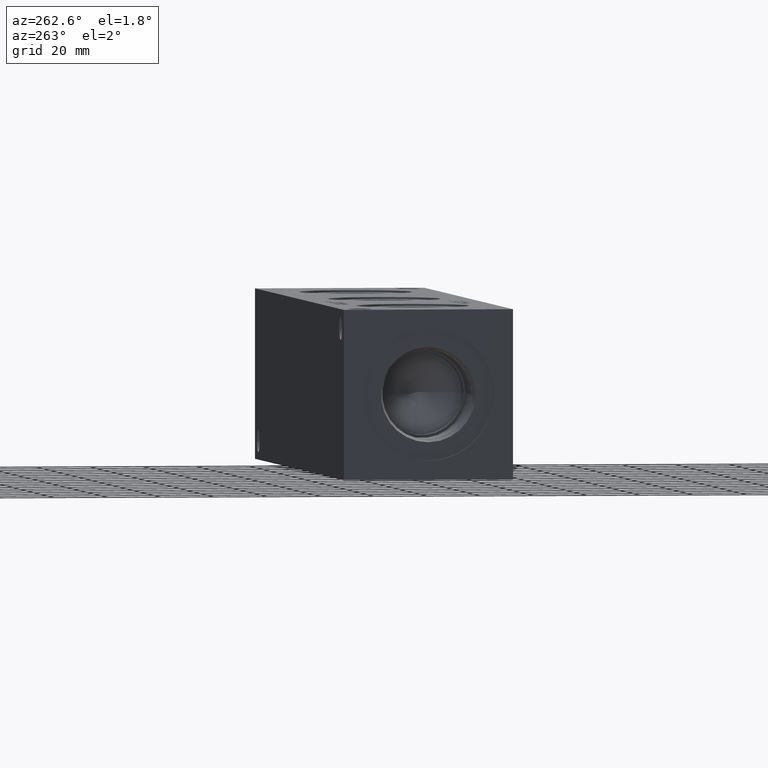
[diagram: clean part render]
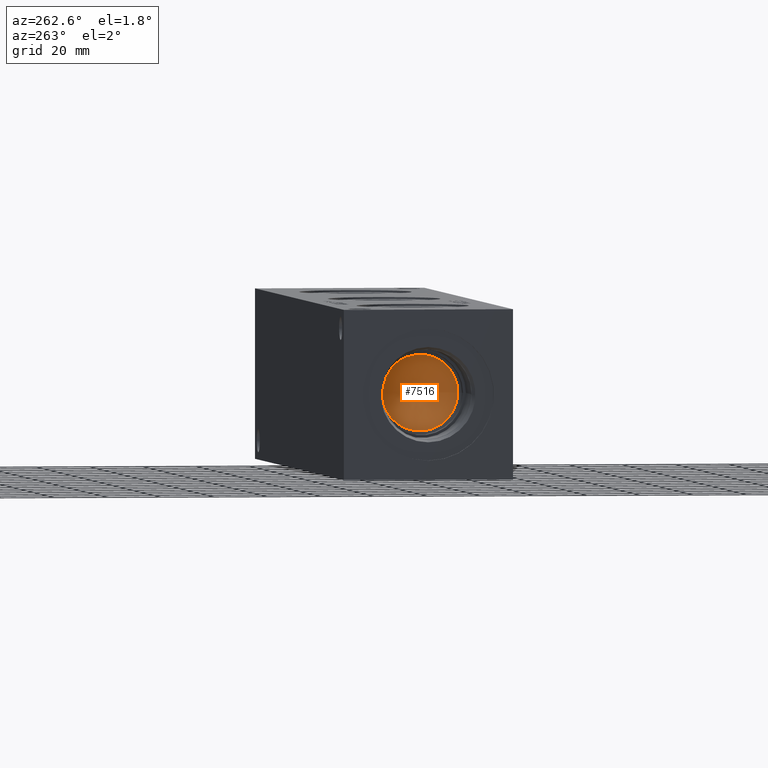
[diagram: same view with one face highlighted and labeled with its STEP entity id]
A machine part, auxiliary view. The second image highlights one B-rep face of the part: STEP entity #7516.
In plain terms, the highlighted conical surface has half-angle 60 deg.
Its self-contained STEP definition (entity closure, byte-faithful):
#23=CONICAL_SURFACE('',#7861,7.14375,1.0471975511966);
#122=CIRCLE('',#7862,14.2875);
#123=CIRCLE('',#7863,14.2875);
#895=FACE_OUTER_BOUND('',#1313,.T.);
#1313=EDGE_LOOP('',(#6403,#6404,#6405,#6406));
#2050=LINE('',#12859,#2763);
#2763=VECTOR('',#9218,7.14375);
#3434=VERTEX_POINT('',#12855);
#3435=VERTEX_POINT('',#12856);
#3436=VERTEX_POINT('',#12858);
#4447=EDGE_CURVE('',#3434,#3435,#122,.T.);
#4448=EDGE_CURVE('',#3435,#3436,#2050,.T.);
#4449=EDGE_CURVE('',#3435,#3434,#123,.T.);
#6403=ORIENTED_EDGE('',*,*,#4447,.T.);
#6404=ORIENTED_EDGE('',*,*,#4448,.T.);
#6405=ORIENTED_EDGE('',*,*,#4448,.F.);
#6406=ORIENTED_EDGE('',*,*,#4449,.T.);
#7516=ADVANCED_FACE('',(#895),#23,.F.);
#7861=AXIS2_PLACEMENT_3D('',#12854,#9214,#9215);
#7862=AXIS2_PLACEMENT_3D('',#12857,#9216,#9217);
#7863=AXIS2_PLACEMENT_3D('',#12860,#9219,#9220);
#9214=DIRECTION('center_axis',(-1.,0.,0.));
#9215=DIRECTION('ref_axis',(0.,1.,0.));
#9216=DIRECTION('center_axis',(-1.,0.,0.));
#9217=DIRECTION('ref_axis',(0.,1.,0.));
#9218=DIRECTION('',(0.5,0.866025403784438,-1.06057523872491E-16));
#9219=DIRECTION('center_axis',(-1.,0.,0.));
#9220=DIRECTION('ref_axis',(0.,1.,0.));
#12854=CARTESIAN_POINT('Origin',(29.2435359855234,31.75,31.75));
#12855=CARTESIAN_POINT('',(25.11909,46.0375,31.75));
#12856=CARTESIAN_POINT('',(25.11909,17.4625,31.75));
#12857=CARTESIAN_POINT('Origin',(25.11909,31.75,31.75));
#12858=CARTESIAN_POINT('',(33.3679819710468,31.75,31.75));
#12859=CARTESIAN_POINT('',(29.2435359855234,24.60625,31.75));
#12860=CARTESIAN_POINT('Origin',(25.11909,31.75,31.75));